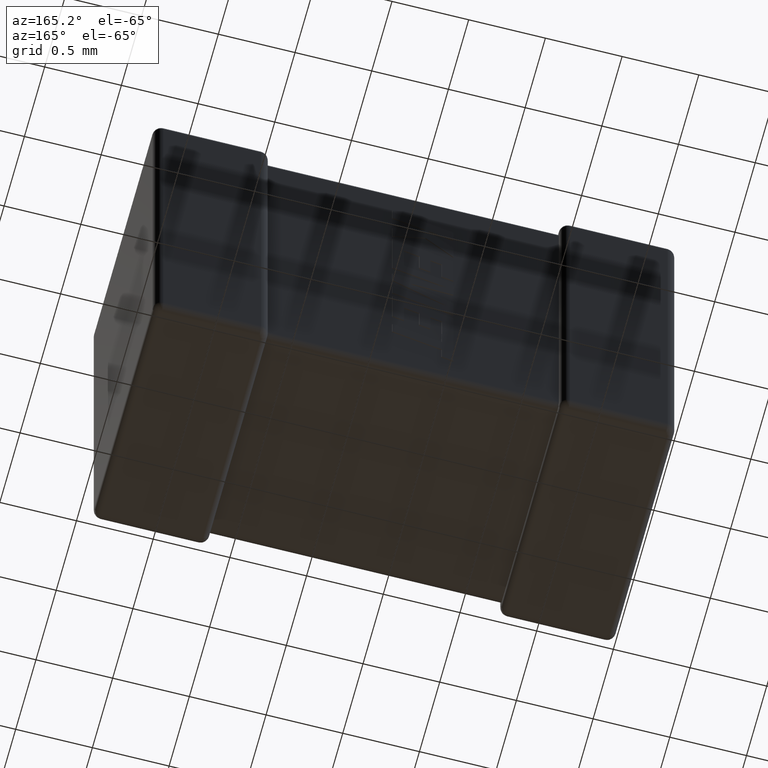
[diagram: clean part render]
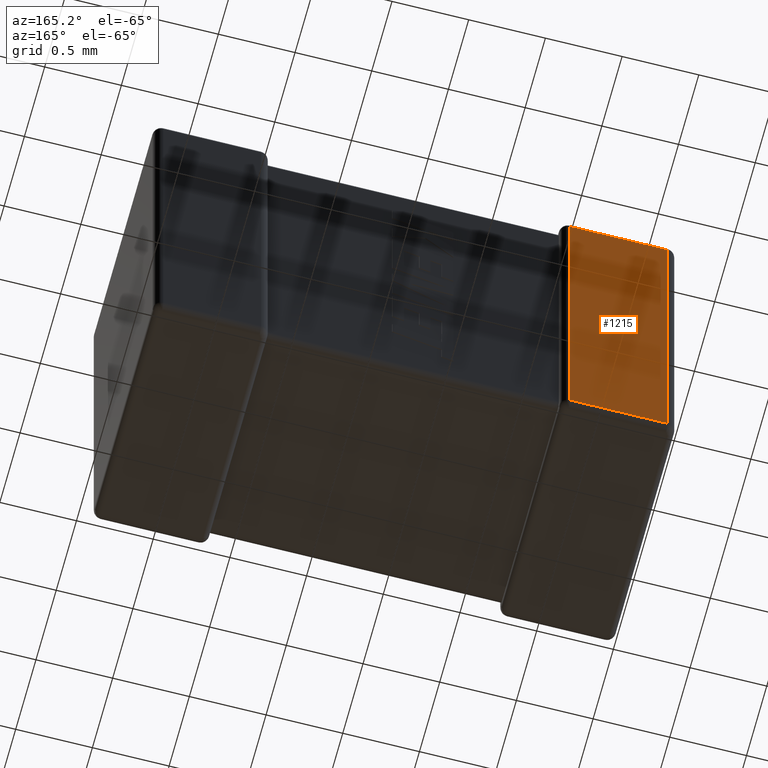
[diagram: same view with one face highlighted and labeled with its STEP entity id]
A machine part, auxiliary view. The second image highlights one B-rep face of the part: STEP entity #1215.
In plain terms, the highlighted planar face has unit normal (0, -1, 0).
Its self-contained STEP definition (entity closure, byte-faithful):
#206 = LINE ( 'NONE', #3141, #831 ) ;
#307 = CARTESIAN_POINT ( 'NONE',  ( 0.05615999999999997383, 1.549999999999999822, -2.643839999999999968 ) ) ;
#359 = CARTESIAN_POINT ( 'NONE',  ( 3.400000000000000355, 1.549999999999999822, 0.000000000000000000 ) ) ;
#689 = VERTEX_POINT ( 'NONE', #3541 ) ;
#831 = VECTOR ( 'NONE', #4583, 1000.000000000000000 ) ;
#1100 = CARTESIAN_POINT ( 'NONE',  ( 0.05615999999999997383, 1.549999999999999822, 0.000000000000000000 ) ) ;
#1211 = EDGE_CURVE ( 'NONE', #689, #3392, #206, .T. ) ;
#1215 = ADVANCED_FACE ( 'NONE', ( #4486 ), #1643, .F. ) ;
#1242 = CARTESIAN_POINT ( 'NONE',  ( 0.6938400000000000123, 1.549999999999999822, -0.05616000000000000159 ) ) ;
#1285 = DIRECTION ( 'NONE',  ( -0.000000000000000000, -0.000000000000000000, -1.000000000000000000 ) ) ;
#1622 = VECTOR ( 'NONE', #2957, 1000.000000000000000 ) ;
#1643 = PLANE ( 'NONE',  #2862 ) ;
#1683 = VECTOR ( 'NONE', #3252, 1000.000000000000000 ) ;
#1712 = ORIENTED_EDGE ( 'NONE', *, *, #3462, .T. ) ;
#1744 = ORIENTED_EDGE ( 'NONE', *, *, #2559, .T. ) ;
#1870 = CARTESIAN_POINT ( 'NONE',  ( 3.400000000000000355, 1.549999999999999822, -2.643839999999999968 ) ) ;
#2103 = DIRECTION ( 'NONE',  ( 0.000000000000000000, -1.000000000000000000, 0.000000000000000000 ) ) ;
#2138 = VECTOR ( 'NONE', #1285, 1000.000000000000000 ) ;
#2150 = LINE ( 'NONE', #1100, #1683 ) ;
#2361 = LINE ( 'NONE', #4527, #2138 ) ;
#2512 = ORIENTED_EDGE ( 'NONE', *, *, #3533, .T. ) ;
#2550 = CARTESIAN_POINT ( 'NONE',  ( 0.6938400000000000123, 1.549999999999999822, -2.643839999999999968 ) ) ;
#2559 = EDGE_CURVE ( 'NONE', #3876, #689, #2150, .T. ) ;
#2862 = AXIS2_PLACEMENT_3D ( 'NONE', #359, #2103, #3209 ) ;
#2957 = DIRECTION ( 'NONE',  ( -1.000000000000000000, 0.000000000000000000, 0.000000000000000000 ) ) ;
#3141 = CARTESIAN_POINT ( 'NONE',  ( 3.400000000000000355, 1.549999999999999822, -0.05616000000000000159 ) ) ;
#3209 = DIRECTION ( 'NONE',  ( 0.000000000000000000, -0.000000000000000000, -1.000000000000000000 ) ) ;
#3252 = DIRECTION ( 'NONE',  ( 0.000000000000000000, 0.000000000000000000, 1.000000000000000000 ) ) ;
#3392 = VERTEX_POINT ( 'NONE', #1242 ) ;
#3462 = EDGE_CURVE ( 'NONE', #4146, #3876, #4029, .T. ) ;
#3533 = EDGE_CURVE ( 'NONE', #3392, #4146, #2361, .T. ) ;
#3541 = CARTESIAN_POINT ( 'NONE',  ( 0.05615999999999997383, 1.549999999999999822, -0.05616000000000000159 ) ) ;
#3792 = ORIENTED_EDGE ( 'NONE', *, *, #1211, .T. ) ;
#3876 = VERTEX_POINT ( 'NONE', #307 ) ;
#4029 = LINE ( 'NONE', #1870, #1622 ) ;
#4146 = VERTEX_POINT ( 'NONE', #2550 ) ;
#4442 = EDGE_LOOP ( 'NONE', ( #2512, #1712, #1744, #3792 ) ) ;
#4486 = FACE_OUTER_BOUND ( 'NONE', #4442, .T. ) ;
#4527 = CARTESIAN_POINT ( 'NONE',  ( 0.6938400000000002343, 1.549999999999999822, 0.000000000000000000 ) ) ;
#4583 = DIRECTION ( 'NONE',  ( 1.000000000000000000, -0.000000000000000000, -0.000000000000000000 ) ) ;